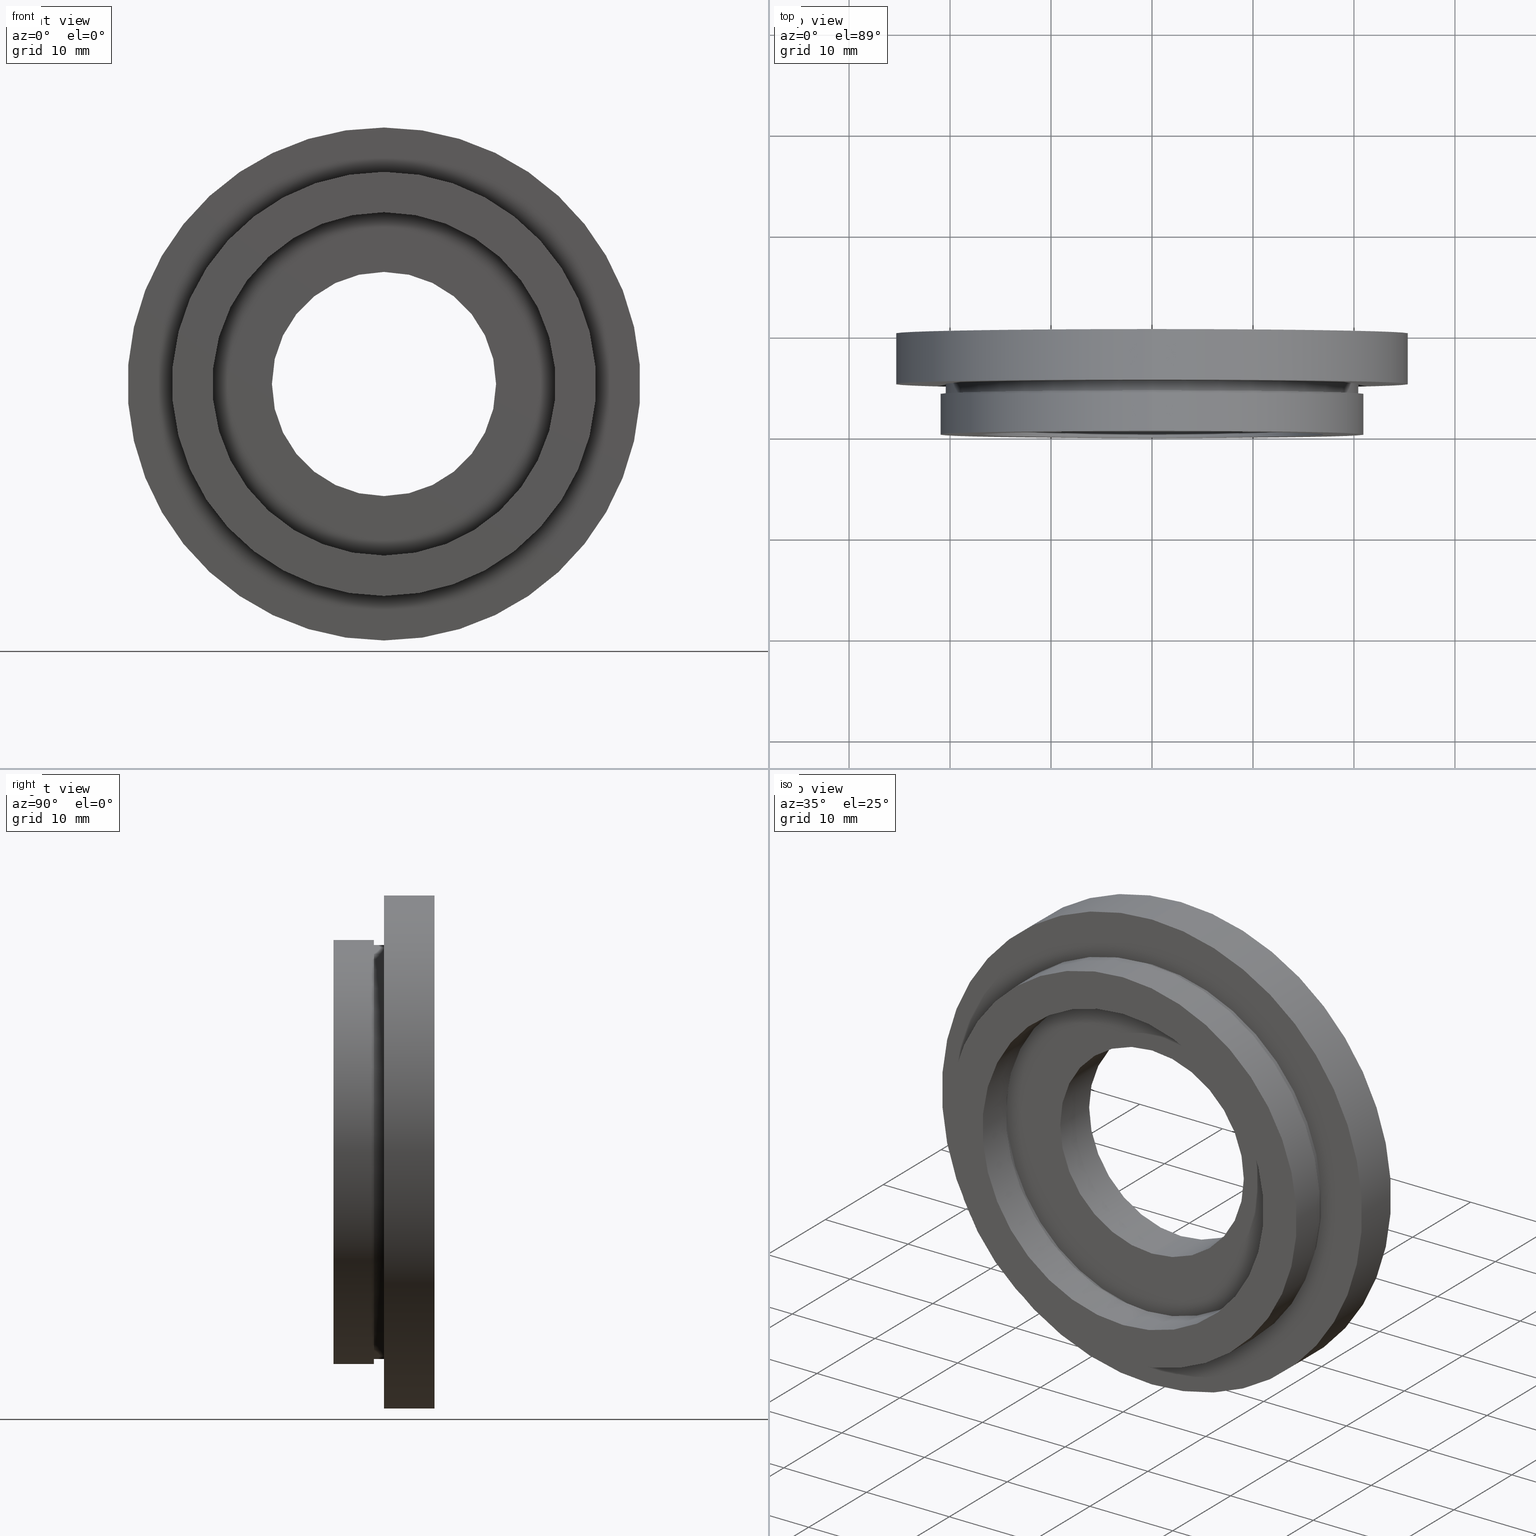
[diagram: canonical four-view strip — front | top / right | iso, engineering-drawing reading convention]
A machine part, canonical four-view strip (front | top / right | iso — engineering-drawing reading convention). The complete STEP part file that produces these views, byte-faithful:
ISO-10303-21;
HEADER;
FILE_DESCRIPTION (( 'STEP AP214' ),
    '1' );
FILE_NAME ('504036.STEP',
    '2019-09-29T09:33:43',
    ( 'user' ),
    ( '΢���й�' ),
    'SwSTEP 2.0',
    'SolidWorks 2016',
    '' );
FILE_SCHEMA (( 'AUTOMOTIVE_DESIGN' ));
ENDSEC;

DATA;
#1 = PRESENTATION_LAYER_ASSIGNMENT (  '', '', ( #592 ) ) ;
#2 = ORIENTED_EDGE ( 'NONE', *, *, #193, .T. ) ;
#3 = EDGE_CURVE ( 'NONE', #600, #511, #496, .T. ) ;
#4 = CARTESIAN_POINT ( 'NONE',  ( 2.510525938252074500E-015, 17.41929831819392000, -20.50000000000000000 ) ) ;
#5 =( NAMED_UNIT ( * ) PLANE_ANGLE_UNIT ( ) SI_UNIT ( $, .RADIAN. ) );
#6 = EDGE_LOOP ( 'NONE', ( #410, #269 ) ) ;
#7 = CIRCLE ( 'NONE', #510, 17.00000000000000400 ) ;
#8 = FILL_AREA_STYLE_COLOUR ( '', #111 ) ;
#9 = AXIS2_PLACEMENT_3D ( 'NONE', #54, #58, #43 ) ;
#10 = ORIENTED_EDGE ( 'NONE', *, *, #504, .T. ) ;
#11 =( LENGTH_UNIT ( ) NAMED_UNIT ( * ) SI_UNIT ( .MILLI., .METRE. ) );
#12 = ORIENTED_EDGE ( 'NONE', *, *, #276, .T. ) ;
#13 = CARTESIAN_POINT ( 'NONE',  ( 0.0000000000000000000, 0.0000000000000000000, 0.0000000000000000000 ) ) ;
#14 = SURFACE_STYLE_USAGE ( .BOTH. , #615 ) ;
#15 = FILL_AREA_STYLE_COLOUR ( '', #290 ) ;
#16 = AXIS2_PLACEMENT_3D ( 'NONE', #464, #528, #191 ) ;
#17 = LINE ( 'NONE', #277, #457 ) ;
#18 = DIRECTION ( 'NONE',  ( -0.0000000000000000000, 1.000000000000000000, -0.0000000000000000000 ) ) ;
#19 = DIRECTION ( 'NONE',  ( 0.0000000000000000000, 0.0000000000000000000, 1.000000000000000000 ) ) ;
#20 = CARTESIAN_POINT ( 'NONE',  ( 0.0000000000000000000, 17.41929831819392000, 0.0000000000000000000 ) ) ;
#21 = FILL_AREA_STYLE ('',( #8 ) ) ;
#22 =( LENGTH_UNIT ( ) NAMED_UNIT ( * ) SI_UNIT ( .MILLI., .METRE. ) );
#23 = ORIENTED_EDGE ( 'NONE', *, *, #3, .F. ) ;
#24 = EDGE_CURVE ( 'NONE', #129, #119, #472, .T. ) ;
#25 = FACE_OUTER_BOUND ( 'NONE', #324, .T. ) ;
#26 = VERTEX_POINT ( 'NONE', #201 ) ;
#27 = DIRECTION ( 'NONE',  ( -0.0000000000000000000, 1.000000000000000000, -0.0000000000000000000 ) ) ;
#28 = CYLINDRICAL_SURFACE ( 'NONE', #508, 17.60000000000000100 ) ;
#29 = CIRCLE ( 'NONE', #103, 21.00000000000000400 ) ;
#30 = EDGE_CURVE ( 'NONE', #26, #450, #603, .T. ) ;
#31 = SURFACE_SIDE_STYLE ('',( #51 ) ) ;
#32 = CARTESIAN_POINT ( 'NONE',  ( 0.0000000000000000000, 17.41929831819392000, 17.00000000000000400 ) ) ;
#33 = AXIS2_PLACEMENT_3D ( 'NONE', #13, #18, #159 ) ;
#34 = DIRECTION ( 'NONE',  ( 0.0000000000000000000, 0.0000000000000000000, 1.000000000000000000 ) ) ;
#35 = STYLED_ITEM ( 'NONE', ( #569 ), #383 ) ;
#36 = CARTESIAN_POINT ( 'NONE',  ( 2.155378366499341600E-015, 17.41929831819392000, -17.60000000000000100 ) ) ;
#37 = DIRECTION ( 'NONE',  ( 1.000000000000000000, 0.0000000000000000000, 0.0000000000000000000 ) ) ;
#38 =( GEOMETRIC_REPRESENTATION_CONTEXT ( 3 ) GLOBAL_UNCERTAINTY_ASSIGNED_CONTEXT ( ( #264 ) ) GLOBAL_UNIT_ASSIGNED_CONTEXT ( ( #245, #467, #67 ) ) REPRESENTATION_CONTEXT ( 'NONE', 'WORKASPACE' ) );
#39 = DIRECTION ( 'NONE',  ( 0.0000000000000000000, -0.0000000000000000000, -1.000000000000000000 ) ) ;
#40 = VERTEX_POINT ( 'NONE', #187 ) ;
#41 = DIRECTION ( 'NONE',  ( -0.0000000000000000000, 1.000000000000000000, -0.0000000000000000000 ) ) ;
#42 = ORIENTED_EDGE ( 'NONE', *, *, #196, .F. ) ;
#43 = DIRECTION ( 'NONE',  ( 0.0000000000000000000, 0.0000000000000000000, 1.000000000000000000 ) ) ;
#44 = FACE_OUTER_BOUND ( 'NONE', #55, .T. ) ;
#45 =( NAMED_UNIT ( * ) PLANE_ANGLE_UNIT ( ) SI_UNIT ( $, .RADIAN. ) );
#46 = ORIENTED_EDGE ( 'NONE', *, *, #525, .F. ) ;
#47 = AXIS2_PLACEMENT_3D ( 'NONE', #387, #526, #521 ) ;
#48 = PRODUCT_DEFINITION_CONTEXT ( 'detailed design', #79, 'design' ) ;
#49 = DIRECTION ( 'NONE',  ( -0.0000000000000000000, 1.000000000000000000, -0.0000000000000000000 ) ) ;
#50 = ADVANCED_FACE ( 'NONE', ( #519 ), #375, .F. ) ;
#51 = SURFACE_STYLE_FILL_AREA ( #487 ) ;
#52 = CIRCLE ( 'NONE', #576, 20.50000000000000000 ) ;
#53 = EDGE_CURVE ( 'NONE', #511, #310, #622, .T. ) ;
#54 = CARTESIAN_POINT ( 'NONE',  ( 0.0000000000000000000, 4.999999999999999100, 0.0000000000000000000 ) ) ;
#55 = EDGE_LOOP ( 'NONE', ( #168, #293 ) ) ;
#56 =( GEOMETRIC_REPRESENTATION_CONTEXT ( 3 ) GLOBAL_UNCERTAINTY_ASSIGNED_CONTEXT ( ( #92 ) ) GLOBAL_UNIT_ASSIGNED_CONTEXT ( ( #11, #460, #477 ) ) REPRESENTATION_CONTEXT ( 'NONE', 'WORKASPACE' ) );
#57 =( LENGTH_UNIT ( ) NAMED_UNIT ( * ) SI_UNIT ( .MILLI., .METRE. ) );
#58 = DIRECTION ( 'NONE',  ( -0.0000000000000000000, 1.000000000000000000, -0.0000000000000000000 ) ) ;
#59 = CYLINDRICAL_SURFACE ( 'NONE', #417, 17.60000000000000100 ) ;
#60 = SURFACE_STYLE_USAGE ( .BOTH. , #416 ) ;
#61 = PRODUCT_CONTEXT ( 'NONE', #122, 'mechanical' ) ;
#62 = PRESENTATION_LAYER_ASSIGNMENT (  '', '', ( #132 ) ) ;
#63 = DIRECTION ( 'NONE',  ( 0.0000000000000000000, 0.0000000000000000000, 1.000000000000000000 ) ) ;
#64 = DIRECTION ( 'NONE',  ( 0.0000000000000000000, -0.0000000000000000000, -1.000000000000000000 ) ) ;
#65 = COLOUR_RGB ( '',1.000000000000000000, 1.000000000000000000, 1.000000000000000000 ) ;
#66 = CIRCLE ( 'NONE', #204, 25.39999999999999900 ) ;
#67 =( NAMED_UNIT ( * ) SI_UNIT ( $, .STERADIAN. ) SOLID_ANGLE_UNIT ( ) );
#68 = DIRECTION ( 'NONE',  ( 0.0000000000000000000, 0.0000000000000000000, 1.000000000000000000 ) ) ;
#69 = EDGE_CURVE ( 'NONE', #294, #386, #66, .T. ) ;
#70 = CARTESIAN_POINT ( 'NONE',  ( 0.0000000000000000000, 4.000000000000000000, 0.0000000000000000000 ) ) ;
#71 = ORIENTED_EDGE ( 'NONE', *, *, #175, .T. ) ;
#72 = STYLED_ITEM ( 'NONE', ( #566 ), #358 ) ;
#73 = CARTESIAN_POINT ( 'NONE',  ( 0.0000000000000000000, 4.000000000000000000, 17.00000000000000400 ) ) ;
#74 = FACE_BOUND ( 'NONE', #124, .T. ) ;
#75 = VECTOR ( 'NONE', #484, 1000.000000000000000 ) ;
#76 = PLANE ( 'NONE',  #165 ) ;
#77 = CARTESIAN_POINT ( 'NONE',  ( 0.0000000000000000000, 17.41929831819392000, 0.0000000000000000000 ) ) ;
#78 = PRESENTATION_LAYER_ASSIGNMENT (  '', '', ( #268 ) ) ;
#79 = APPLICATION_CONTEXT ( 'automotive_design' ) ;
#80 = VECTOR ( 'NONE', #436, 1000.000000000000000 ) ;
#81 = DIRECTION ( 'NONE',  ( -0.0000000000000000000, 1.000000000000000000, -0.0000000000000000000 ) ) ;
#82 = ORIENTED_EDGE ( 'NONE', *, *, #53, .F. ) ;
#83 = DIRECTION ( 'NONE',  ( 0.0000000000000000000, 0.0000000000000000000, 1.000000000000000000 ) ) ;
#84 = FACE_BOUND ( 'NONE', #120, .T. ) ;
#85 = APPLICATION_PROTOCOL_DEFINITION ( 'draft international standard', 'automotive_design', 1998, #79 ) ;
#86 = EDGE_LOOP ( 'NONE', ( #365, #274 ) ) ;
#87 = AXIS2_PLACEMENT_3D ( 'NONE', #291, #316, #542 ) ;
#88 = VECTOR ( 'NONE', #198, 1000.000000000000000 ) ;
#89 = CARTESIAN_POINT ( 'NONE',  ( 0.0000000000000000000, 17.41929831819392000, 0.0000000000000000000 ) ) ;
#90 =( GEOMETRIC_REPRESENTATION_CONTEXT ( 3 ) GLOBAL_UNCERTAINTY_ASSIGNED_CONTEXT ( ( #300 ) ) GLOBAL_UNIT_ASSIGNED_CONTEXT ( ( #205, #107, #105 ) ) REPRESENTATION_CONTEXT ( 'NONE', 'WORKASPACE' ) );
#91 = CARTESIAN_POINT ( 'NONE',  ( 0.0000000000000000000, 0.0000000000000000000, 21.00000000000000400 ) ) ;
#92 = UNCERTAINTY_MEASURE_WITH_UNIT (LENGTH_MEASURE( 1.000000000000000100E-005 ), #11, 'distance_accuracy_value', 'NONE');
#93 = DIRECTION ( 'NONE',  ( -0.0000000000000000000, 1.000000000000000000, -0.0000000000000000000 ) ) ;
#94 = EDGE_CURVE ( 'NONE', #386, #469, #17, .T. ) ;
#95 = CARTESIAN_POINT ( 'NONE',  ( 0.0000000000000000000, 17.41929831819392000, 21.00000000000000400 ) ) ;
#96 = CARTESIAN_POINT ( 'NONE',  ( 0.0000000000000000000, 17.41929831819392000, 20.50000000000000000 ) ) ;
#97 = CIRCLE ( 'NONE', #33, 17.00000000000000400 ) ;
#98 = VERTEX_POINT ( 'NONE', #273 ) ;
#99 = FACE_BOUND ( 'NONE', #311, .T. ) ;
#100 = CARTESIAN_POINT ( 'NONE',  ( 0.0000000000000000000, 17.41929831819392000, 0.0000000000000000000 ) ) ;
#101 = PRODUCT ( '504036', '504036', '', ( #61 ) ) ;
#102 = CARTESIAN_POINT ( 'NONE',  ( 0.0000000000000000000, 17.41929831819392000, 0.0000000000000000000 ) ) ;
#103 = AXIS2_PLACEMENT_3D ( 'NONE', #494, #572, #567 ) ;
#104 = SURFACE_SIDE_STYLE ('',( #314 ) ) ;
#105 =( NAMED_UNIT ( * ) SI_UNIT ( $, .STERADIAN. ) SOLID_ANGLE_UNIT ( ) );
#106 = DIRECTION ( 'NONE',  ( 0.0000000000000000000, 0.0000000000000000000, 1.000000000000000000 ) ) ;
#107 =( NAMED_UNIT ( * ) PLANE_ANGLE_UNIT ( ) SI_UNIT ( $, .RADIAN. ) );
#108 = DIRECTION ( 'NONE',  ( 0.0000000000000000000, -1.000000000000000000, 0.0000000000000000000 ) ) ;
#109 = AXIS2_PLACEMENT_3D ( 'NONE', #581, #93, #377 ) ;
#110 = VERTEX_POINT ( 'NONE', #313 ) ;
#111 = COLOUR_RGB ( '',1.000000000000000000, 1.000000000000000000, 1.000000000000000000 ) ;
#112 = ORIENTED_EDGE ( 'NONE', *, *, #350, .F. ) ;
#113 = UNCERTAINTY_MEASURE_WITH_UNIT (LENGTH_MEASURE( 1.000000000000000100E-005 ), #480, 'distance_accuracy_value', 'NONE');
#114 = FACE_OUTER_BOUND ( 'NONE', #614, .T. ) ;
#115 = MECHANICAL_DESIGN_GEOMETRIC_PRESENTATION_REPRESENTATION (  '', ( #592 ), #523 ) ;
#116 = ADVANCED_BREP_SHAPE_REPRESENTATION ( '504036', ( #383, #394 ), #90 ) ;
#117 = ORIENTED_EDGE ( 'NONE', *, *, #282, .F. ) ;
#118 = ADVANCED_FACE ( 'NONE', ( #312 ), #28, .F. ) ;
#119 = VERTEX_POINT ( 'NONE', #326 ) ;
#120 = EDGE_LOOP ( 'NONE', ( #378, #166 ) ) ;
#121 = VERTEX_POINT ( 'NONE', #517 ) ;
#122 = APPLICATION_CONTEXT ( 'automotive_design' ) ;
#123 = FILL_AREA_STYLE_COLOUR ( '', #65 ) ;
#124 = EDGE_LOOP ( 'NONE', ( #613, #82 ) ) ;
#125 = ORIENTED_EDGE ( 'NONE', *, *, #24, .F. ) ;
#126 = DIRECTION ( 'NONE',  ( -0.0000000000000000000, 1.000000000000000000, -0.0000000000000000000 ) ) ;
#127 = ORIENTED_EDGE ( 'NONE', *, *, #423, .F. ) ;
#128 = ORIENTED_EDGE ( 'NONE', *, *, #223, .T. ) ;
#129 = VERTEX_POINT ( 'NONE', #329 ) ;
#130 = CARTESIAN_POINT ( 'NONE',  ( 20.50000000000000000, 5.000000000000000000, 0.0000000000000000000 ) ) ;
#131 = CIRCLE ( 'NONE', #442, 25.39999999999999900 ) ;
#132 = STYLED_ITEM ( 'NONE', ( #560 ), #583 ) ;
#133 = VERTEX_POINT ( 'NONE', #335 ) ;
#134 = DIRECTION ( 'NONE',  ( -0.0000000000000000000, 1.000000000000000000, -0.0000000000000000000 ) ) ;
#135 = ORIENTED_EDGE ( 'NONE', *, *, #309, .T. ) ;
#136 = DIRECTION ( 'NONE',  ( -0.0000000000000000000, 1.000000000000000000, 0.0000000000000000000 ) ) ;
#137 =( GEOMETRIC_REPRESENTATION_CONTEXT ( 3 ) GLOBAL_UNCERTAINTY_ASSIGNED_CONTEXT ( ( #113 ) ) GLOBAL_UNIT_ASSIGNED_CONTEXT ( ( #480, #488, #177 ) ) REPRESENTATION_CONTEXT ( 'NONE', 'WORKASPACE' ) );
#138 = VERTEX_POINT ( 'NONE', #522 ) ;
#139 = DIRECTION ( 'NONE',  ( -0.0000000000000000000, 1.000000000000000000, -0.0000000000000000000 ) ) ;
#140 = DIRECTION ( 'NONE',  ( -0.0000000000000000000, 1.000000000000000000, -0.0000000000000000000 ) ) ;
#141 = DIRECTION ( 'NONE',  ( 0.0000000000000000000, 0.0000000000000000000, 1.000000000000000000 ) ) ;
#142 = ORIENTED_EDGE ( 'NONE', *, *, #525, .T. ) ;
#143 = PLANE ( 'NONE',  #616 ) ;
#144 = COLOUR_RGB ( '',1.000000000000000000, 1.000000000000000000, 1.000000000000000000 ) ;
#145 = EDGE_CURVE ( 'NONE', #133, #129, #588, .T. ) ;
#146 = ORIENTED_EDGE ( 'NONE', *, *, #385, .T. ) ;
#147 = CYLINDRICAL_SURFACE ( 'NONE', #529, 21.00000000000000400 ) ;
#148 =( NAMED_UNIT ( * ) SI_UNIT ( $, .STERADIAN. ) SOLID_ANGLE_UNIT ( ) );
#149 = FILL_AREA_STYLE ('',( #570 ) ) ;
#150 = CARTESIAN_POINT ( 'NONE',  ( 0.0000000000000000000, 4.000000000000000000, 0.0000000000000000000 ) ) ;
#151 = MECHANICAL_DESIGN_GEOMETRIC_PRESENTATION_REPRESENTATION (  '', ( #35 ), #137 ) ;
#152 = DIRECTION ( 'NONE',  ( 0.0000000000000000000, 0.0000000000000000000, 1.000000000000000000 ) ) ;
#153 = CIRCLE ( 'NONE', #9, 11.10000000000000100 ) ;
#154 = CARTESIAN_POINT ( 'NONE',  ( 21.00000000000000400, 4.000000000000000000, 0.0000000000000000000 ) ) ;
#155 = ORIENTED_EDGE ( 'NONE', *, *, #212, .T. ) ;
#156 = CARTESIAN_POINT ( 'NONE',  ( 0.0000000000000000000, 0.0000000000000000000, 0.0000000000000000000 ) ) ;
#157 = DIRECTION ( 'NONE',  ( 0.0000000000000000000, 0.0000000000000000000, 1.000000000000000000 ) ) ;
#158 = FILL_AREA_STYLE_COLOUR ( '', #340 ) ;
#159 = DIRECTION ( 'NONE',  ( 0.0000000000000000000, 0.0000000000000000000, 1.000000000000000000 ) ) ;
#160 = AXIS2_PLACEMENT_3D ( 'NONE', #289, #108, #64 ) ;
#161 = ORIENTED_EDGE ( 'NONE', *, *, #532, .F. ) ;
#162 = DIRECTION ( 'NONE',  ( -0.0000000000000000000, 1.000000000000000000, 0.0000000000000000000 ) ) ;
#163 = PRODUCT_DEFINITION_SHAPE ( 'NONE', 'NONE',  #577 ) ;
#164 = DIRECTION ( 'NONE',  ( 0.0000000000000000000, 0.0000000000000000000, 1.000000000000000000 ) ) ;
#165 = AXIS2_PLACEMENT_3D ( 'NONE', #202, #162, #34 ) ;
#166 = ORIENTED_EDGE ( 'NONE', *, *, #468, .T. ) ;
#167 = AXIS2_PLACEMENT_3D ( 'NONE', #77, #49, #83 ) ;
#168 = ORIENTED_EDGE ( 'NONE', *, *, #282, .T. ) ;
#169 = CIRCLE ( 'NONE', #372, 21.00000000000000400 ) ;
#170 = ORIENTED_EDGE ( 'NONE', *, *, #434, .F. ) ;
#171 = CARTESIAN_POINT ( 'NONE',  ( 0.0000000000000000000, 5.000000000000000900, 25.39999999999999900 ) ) ;
#172 = EDGE_CURVE ( 'NONE', #26, #237, #194, .T. ) ;
#173 = SURFACE_STYLE_FILL_AREA ( #610 ) ;
#174 = CARTESIAN_POINT ( 'NONE',  ( 0.0000000000000000000, 0.0000000000000000000, 0.0000000000000000000 ) ) ;
#175 = EDGE_CURVE ( 'NONE', #121, #133, #389, .T. ) ;
#176 = PRESENTATION_LAYER_ASSIGNMENT (  '', '', ( #391 ) ) ;
#177 =( NAMED_UNIT ( * ) SI_UNIT ( $, .STERADIAN. ) SOLID_ANGLE_UNIT ( ) );
#178 = AXIS2_PLACEMENT_3D ( 'NONE', #154, #338, #388 ) ;
#179 = ADVANCED_FACE ( 'NONE', ( #74, #438 ), #451, .F. ) ;
#180 = PRESENTATION_STYLE_ASSIGNMENT (( #285 ) ) ;
#181 = CARTESIAN_POINT ( 'NONE',  ( 0.0000000000000000000, 10.00000000000000000, 0.0000000000000000000 ) ) ;
#182 = COLOUR_RGB ( '',1.000000000000000000, 1.000000000000000000, 1.000000000000000000 ) ;
#183 = CARTESIAN_POINT ( 'NONE',  ( 0.0000000000000000000, 10.00000000000000000, 25.39999999999999900 ) ) ;
#184 = UNCERTAINTY_MEASURE_WITH_UNIT (LENGTH_MEASURE( 1.000000000000000100E-005 ), #364, 'distance_accuracy_value', 'NONE');
#185 = FACE_OUTER_BOUND ( 'NONE', #608, .T. ) ;
#186 = CIRCLE ( 'NONE', #439, 20.50000000000000000 ) ;
#187 = CARTESIAN_POINT ( 'NONE',  ( 2.510525938252074500E-015, 5.000000000000000900, -20.50000000000000000 ) ) ;
#188 = PRESENTATION_LAYER_ASSIGNMENT (  '', '', ( #286 ) ) ;
#189 = CARTESIAN_POINT ( 'NONE',  ( 0.0000000000000000000, 0.0000000000000000000, 0.0000000000000000000 ) ) ;
#190 = EDGE_LOOP ( 'NONE', ( #135, #71 ) ) ;
#191 = DIRECTION ( 'NONE',  ( 0.0000000000000000000, 0.0000000000000000000, 1.000000000000000000 ) ) ;
#192 = DIRECTION ( 'NONE',  ( -0.0000000000000000000, 1.000000000000000000, -0.0000000000000000000 ) ) ;
#193 = EDGE_CURVE ( 'NONE', #600, #476, #424, .T. ) ;
#194 = LINE ( 'NONE', #533, #573 ) ;
#195 = FACE_OUTER_BOUND ( 'NONE', #462, .T. ) ;
#196 = EDGE_CURVE ( 'NONE', #121, #119, #296, .T. ) ;
#197 = DIRECTION ( 'NONE',  ( 0.0000000000000000000, 0.0000000000000000000, 1.000000000000000000 ) ) ;
#198 = DIRECTION ( 'NONE',  ( -0.0000000000000000000, 1.000000000000000000, -0.0000000000000000000 ) ) ;
#199 = DIRECTION ( 'NONE',  ( -0.0000000000000000000, 1.000000000000000000, -0.0000000000000000000 ) ) ;
#200 = ORIENTED_EDGE ( 'NONE', *, *, #94, .F. ) ;
#201 = CARTESIAN_POINT ( 'NONE',  ( 2.571758278209442100E-015, 0.0000000000000000000, -21.00000000000000400 ) ) ;
#202 = CARTESIAN_POINT ( 'NONE',  ( 17.60000000000000100, 4.999999999999999100, 0.0000000000000000000 ) ) ;
#203 = EDGE_LOOP ( 'NONE', ( #449, #253, #611, #541 ) ) ;
#204 = AXIS2_PLACEMENT_3D ( 'NONE', #344, #341, #318 ) ;
#205 =( LENGTH_UNIT ( ) NAMED_UNIT ( * ) SI_UNIT ( .MILLI., .METRE. ) );
#206 = AXIS2_PLACEMENT_3D ( 'NONE', #393, #81, #598 ) ;
#207 = ORIENTED_EDGE ( 'NONE', *, *, #429, .F. ) ;
#208 = CARTESIAN_POINT ( 'NONE',  ( 0.0000000000000000000, 17.41929831819392000, 0.0000000000000000000 ) ) ;
#209 = ORIENTED_EDGE ( 'NONE', *, *, #561, .T. ) ;
#210 = FACE_OUTER_BOUND ( 'NONE', #267, .T. ) ;
#211 = ORIENTED_EDGE ( 'NONE', *, *, #490, .F. ) ;
#212 = EDGE_CURVE ( 'NONE', #138, #40, #379, .T. ) ;
#213 = EDGE_LOOP ( 'NONE', ( #215, #602, #518, #483 ) ) ;
#214 = FACE_OUTER_BOUND ( 'NONE', #367, .T. ) ;
#215 = ORIENTED_EDGE ( 'NONE', *, *, #175, .F. ) ;
#216 = SURFACE_STYLE_FILL_AREA ( #295 ) ;
#217 = FACE_OUTER_BOUND ( 'NONE', #232, .T. ) ;
#218 = UNCERTAINTY_MEASURE_WITH_UNIT (LENGTH_MEASURE( 1.000000000000000100E-005 ), #621, 'distance_accuracy_value', 'NONE');
#219 = CARTESIAN_POINT ( 'NONE',  ( 2.081899558550500700E-015, 17.41929831819392000, -17.00000000000000400 ) ) ;
#220 = ORIENTED_EDGE ( 'NONE', *, *, #212, .F. ) ;
#221 = DIRECTION ( 'NONE',  ( -0.0000000000000000000, 1.000000000000000000, -0.0000000000000000000 ) ) ;
#222 = ORIENTED_EDGE ( 'NONE', *, *, #30, .T. ) ;
#223 = EDGE_CURVE ( 'NONE', #420, #138, #186, .T. ) ;
#224 = MECHANICAL_DESIGN_GEOMETRIC_PRESENTATION_REPRESENTATION (  '', ( #268 ), #403 ) ;
#225 = PRODUCT_DEFINITION_FORMATION_WITH_SPECIFIED_SOURCE ( '�κ�', '', #101, .NOT_KNOWN. ) ;
#226 = DIRECTION ( 'NONE',  ( 0.0000000000000000000, 0.0000000000000000000, 1.000000000000000000 ) ) ;
#227 = ADVANCED_FACE ( 'NONE', ( #278 ), #543, .T. ) ;
#228 = DIRECTION ( 'NONE',  ( -0.0000000000000000000, 1.000000000000000000, -0.0000000000000000000 ) ) ;
#229 = ORIENTED_EDGE ( 'NONE', *, *, #504, .F. ) ;
#230 = EDGE_LOOP ( 'NONE', ( #259, #222, #10, #207 ) ) ;
#231 = FACE_BOUND ( 'NONE', #190, .T. ) ;
#232 = EDGE_LOOP ( 'NONE', ( #161, #412 ) ) ;
#233 = CARTESIAN_POINT ( 'NONE',  ( 1.359357947053562400E-015, 17.41929831819392000, -11.10000000000000100 ) ) ;
#234 = ADVANCED_FACE ( 'NONE', ( #559, #44 ), #422, .F. ) ;
#235 = CARTESIAN_POINT ( 'NONE',  ( 0.0000000000000000000, 17.41929831819392000, 0.0000000000000000000 ) ) ;
#236 = MECHANICAL_DESIGN_GEOMETRIC_PRESENTATION_REPRESENTATION (  '', ( #258 ), #272 ) ;
#237 = VERTEX_POINT ( 'NONE', #321 ) ;
#238 = ORIENTED_EDGE ( 'NONE', *, *, #594, .F. ) ;
#239 = DIRECTION ( 'NONE',  ( -0.0000000000000000000, 1.000000000000000000, -0.0000000000000000000 ) ) ;
#240 = ORIENTED_EDGE ( 'NONE', *, *, #309, .F. ) ;
#241 = CYLINDRICAL_SURFACE ( 'NONE', #206, 17.00000000000000400 ) ;
#242 = CIRCLE ( 'NONE', #531, 20.50000000000000000 ) ;
#243 = UNCERTAINTY_MEASURE_WITH_UNIT (LENGTH_MEASURE( 1.000000000000000100E-005 ), #22, 'distance_accuracy_value', 'NONE');
#244 = VECTOR ( 'NONE', #298, 1000.000000000000000 ) ;
#245 =( LENGTH_UNIT ( ) NAMED_UNIT ( * ) SI_UNIT ( .MILLI., .METRE. ) );
#246 = CIRCLE ( 'NONE', #47, 25.39999999999999900 ) ;
#247 = CARTESIAN_POINT ( 'NONE',  ( 0.0000000000000000000, 4.999999999999999100, 0.0000000000000000000 ) ) ;
#248 = FACE_OUTER_BOUND ( 'NONE', #230, .T. ) ;
#249 = AXIS2_PLACEMENT_3D ( 'NONE', #20, #27, #68 ) ;
#250 = ORIENTED_EDGE ( 'NONE', *, *, #345, .T. ) ;
#251 = MECHANICAL_DESIGN_GEOMETRIC_PRESENTATION_REPRESENTATION (  '', ( #132 ), #38 ) ;
#252 = DIRECTION ( 'NONE',  ( 0.0000000000000000000, 0.0000000000000000000, 1.000000000000000000 ) ) ;
#253 = ORIENTED_EDGE ( 'NONE', *, *, #69, .T. ) ;
#254 = FACE_OUTER_BOUND ( 'NONE', #353, .T. ) ;
#255 = VECTOR ( 'NONE', #41, 1000.000000000000000 ) ;
#256 = CIRCLE ( 'NONE', #87, 17.60000000000000100 ) ;
#257 = FILL_AREA_STYLE ('',( #15 ) ) ;
#258 = STYLED_ITEM ( 'NONE', ( #180 ), #50 ) ;
#259 = ORIENTED_EDGE ( 'NONE', *, *, #172, .F. ) ;
#260 = LINE ( 'NONE', #96, #406 ) ;
#261 =( GEOMETRIC_REPRESENTATION_CONTEXT ( 3 ) GLOBAL_UNCERTAINTY_ASSIGNED_CONTEXT ( ( #357 ) ) GLOBAL_UNIT_ASSIGNED_CONTEXT ( ( #57, #5, #376 ) ) REPRESENTATION_CONTEXT ( 'NONE', 'WORKASPACE' ) );
#262 = ORIENTED_EDGE ( 'NONE', *, *, #3, .T. ) ;
#263 =( NAMED_UNIT ( * ) SI_UNIT ( $, .STERADIAN. ) SOLID_ANGLE_UNIT ( ) );
#264 = UNCERTAINTY_MEASURE_WITH_UNIT (LENGTH_MEASURE( 1.000000000000000100E-005 ), #245, 'distance_accuracy_value', 'NONE');
#265 = EDGE_LOOP ( 'NONE', ( #544, #425, #46, #200 ) ) ;
#266 = DIRECTION ( 'NONE',  ( -0.0000000000000000000, 1.000000000000000000, -0.0000000000000000000 ) ) ;
#267 = EDGE_LOOP ( 'NONE', ( #211, #342 ) ) ;
#268 = STYLED_ITEM ( 'NONE', ( #605 ), #426 ) ;
#269 = ORIENTED_EDGE ( 'NONE', *, *, #287, .F. ) ;
#270 =( NAMED_UNIT ( * ) PLANE_ANGLE_UNIT ( ) SI_UNIT ( $, .RADIAN. ) );
#271 = FACE_OUTER_BOUND ( 'NONE', #395, .T. ) ;
#272 =( GEOMETRIC_REPRESENTATION_CONTEXT ( 3 ) GLOBAL_UNCERTAINTY_ASSIGNED_CONTEXT ( ( #445 ) ) GLOBAL_UNIT_ASSIGNED_CONTEXT ( ( #281, #270, #263 ) ) REPRESENTATION_CONTEXT ( 'NONE', 'WORKASPACE' ) );
#273 = CARTESIAN_POINT ( 'NONE',  ( 3.110602869834276900E-015, 10.00000000000000000, -25.39999999999999900 ) ) ;
#274 = ORIENTED_EDGE ( 'NONE', *, *, #554, .T. ) ;
#275 = ORIENTED_EDGE ( 'NONE', *, *, #618, .F. ) ;
#276 = EDGE_CURVE ( 'NONE', #420, #401, #260, .T. ) ;
#277 = CARTESIAN_POINT ( 'NONE',  ( 0.0000000000000000000, 17.41929831819392000, 25.39999999999999900 ) ) ;
#278 = FACE_OUTER_BOUND ( 'NONE', #265, .T. ) ;
#279 = DIRECTION ( 'NONE',  ( 0.0000000000000000000, 0.0000000000000000000, 1.000000000000000000 ) ) ;
#280 = ORIENTED_EDGE ( 'NONE', *, *, #276, .F. ) ;
#281 =( LENGTH_UNIT ( ) NAMED_UNIT ( * ) SI_UNIT ( .MILLI., .METRE. ) );
#282 = EDGE_CURVE ( 'NONE', #369, #237, #169, .T. ) ;
#283 =( NAMED_UNIT ( * ) PLANE_ANGLE_UNIT ( ) SI_UNIT ( $, .RADIAN. ) );
#284 = ORIENTED_EDGE ( 'NONE', *, *, #350, .T. ) ;
#285 = SURFACE_STYLE_USAGE ( .BOTH. , #292 ) ;
#286 = STYLED_ITEM ( 'NONE', ( #288 ), #116 ) ;
#287 = EDGE_CURVE ( 'NONE', #138, #420, #52, .T. ) ;
#288 = PRESENTATION_STYLE_ASSIGNMENT (( #482 ) ) ;
#289 = CARTESIAN_POINT ( 'NONE',  ( 11.10000000000000100, 10.00000000000000000, 0.0000000000000000000 ) ) ;
#290 = COLOUR_RGB ( '',1.000000000000000000, 1.000000000000000000, 1.000000000000000000 ) ;
#291 = CARTESIAN_POINT ( 'NONE',  ( 0.0000000000000000000, 4.000000000000000000, 0.0000000000000000000 ) ) ;
#292 = SURFACE_SIDE_STYLE ('',( #216 ) ) ;
#293 = ORIENTED_EDGE ( 'NONE', *, *, #429, .T. ) ;
#294 = VERTEX_POINT ( 'NONE', #489 ) ;
#295 = FILL_AREA_STYLE ('',( #302 ) ) ;
#296 = LINE ( 'NONE', #233, #244 ) ;
#297 = PLANE ( 'NONE',  #160 ) ;
#298 = DIRECTION ( 'NONE',  ( -0.0000000000000000000, 1.000000000000000000, -0.0000000000000000000 ) ) ;
#299 = DIRECTION ( 'NONE',  ( 0.0000000000000000000, 0.0000000000000000000, 1.000000000000000000 ) ) ;
#300 = UNCERTAINTY_MEASURE_WITH_UNIT (LENGTH_MEASURE( 1.000000000000000100E-005 ), #205, 'distance_accuracy_value', 'NONE');
#301 = CARTESIAN_POINT ( 'NONE',  ( 0.0000000000000000000, 10.00000000000000000, 0.0000000000000000000 ) ) ;
#302 = FILL_AREA_STYLE_COLOUR ( '', #330 ) ;
#303 = LINE ( 'NONE', #36, #549 ) ;
#304 = SURFACE_STYLE_FILL_AREA ( #257 ) ;
#305 = ORIENTED_EDGE ( 'NONE', *, *, #561, .F. ) ;
#306 = DIRECTION ( 'NONE',  ( 0.0000000000000000000, 0.0000000000000000000, 1.000000000000000000 ) ) ;
#307 = ADVANCED_FACE ( 'NONE', ( #210, #84 ), #143, .F. ) ;
#308 = AXIS2_PLACEMENT_3D ( 'NONE', #301, #325, #320 ) ;
#309 = EDGE_CURVE ( 'NONE', #133, #121, #153, .T. ) ;
#310 = VERTEX_POINT ( 'NONE', #73 ) ;
#311 = EDGE_LOOP ( 'NONE', ( #454, #2 ) ) ;
#312 = FACE_OUTER_BOUND ( 'NONE', #491, .T. ) ;
#313 = CARTESIAN_POINT ( 'NONE',  ( 2.155378366499341600E-015, 4.000000000000000000, -17.60000000000000100 ) ) ;
#314 = SURFACE_STYLE_FILL_AREA ( #149 ) ;
#315 = DIRECTION ( 'NONE',  ( -0.0000000000000000000, 1.000000000000000000, -0.0000000000000000000 ) ) ;
#316 = DIRECTION ( 'NONE',  ( -0.0000000000000000000, 1.000000000000000000, -0.0000000000000000000 ) ) ;
#317 = CARTESIAN_POINT ( 'NONE',  ( 0.0000000000000000000, 5.000000000000000900, 0.0000000000000000000 ) ) ;
#318 = DIRECTION ( 'NONE',  ( 0.0000000000000000000, 0.0000000000000000000, 1.000000000000000000 ) ) ;
#319 = VECTOR ( 'NONE', #430, 1000.000000000000000 ) ;
#320 = DIRECTION ( 'NONE',  ( 0.0000000000000000000, 0.0000000000000000000, 1.000000000000000000 ) ) ;
#321 = CARTESIAN_POINT ( 'NONE',  ( 2.571758278209442100E-015, 4.000000000000000000, -21.00000000000000400 ) ) ;
#322 = DIRECTION ( 'NONE',  ( 0.0000000000000000000, 0.0000000000000000000, 1.000000000000000000 ) ) ;
#323 = CARTESIAN_POINT ( 'NONE',  ( 0.0000000000000000000, 4.999999999999999100, 17.60000000000000100 ) ) ;
#324 = EDGE_LOOP ( 'NONE', ( #142, #456 ) ) ;
#325 = DIRECTION ( 'NONE',  ( -0.0000000000000000000, 1.000000000000000000, -0.0000000000000000000 ) ) ;
#326 = CARTESIAN_POINT ( 'NONE',  ( 1.359357947053562400E-015, 10.00000000000000000, -11.10000000000000100 ) ) ;
#327 = CLOSED_SHELL ( 'NONE', ( #596, #118, #583, #227, #328, #426, #470, #358, #234, #354, #307, #452, #604, #370, #620, #555, #179, #50 ) ) ;
#328 = ADVANCED_FACE ( 'NONE', ( #448 ), #479, .T. ) ;
#329 = CARTESIAN_POINT ( 'NONE',  ( 0.0000000000000000000, 10.00000000000000000, 11.10000000000000100 ) ) ;
#330 = COLOUR_RGB ( '',1.000000000000000000, 1.000000000000000000, 1.000000000000000000 ) ;
#331 = CARTESIAN_POINT ( 'NONE',  ( 0.0000000000000000000, 17.41929831819392000, 0.0000000000000000000 ) ) ;
#332 = LINE ( 'NONE', #95, #88 ) ;
#333 = AXIS2_PLACEMENT_3D ( 'NONE', #100, #349, #539 ) ;
#334 = FILL_AREA_STYLE ('',( #563 ) ) ;
#335 = CARTESIAN_POINT ( 'NONE',  ( 0.0000000000000000000, 4.999999999999999100, 11.10000000000000100 ) ) ;
#336 = CARTESIAN_POINT ( 'NONE',  ( 0.0000000000000000000, 17.41929831819392000, 0.0000000000000000000 ) ) ;
#337 = AXIS2_PLACEMENT_3D ( 'NONE', #404, #458, #547 ) ;
#338 = DIRECTION ( 'NONE',  ( 0.0000000000000000000, -1.000000000000000000, 0.0000000000000000000 ) ) ;
#339 = DIRECTION ( 'NONE',  ( 0.0000000000000000000, 0.0000000000000000000, 1.000000000000000000 ) ) ;
#340 = COLOUR_RGB ( '',1.000000000000000000, 1.000000000000000000, 1.000000000000000000 ) ;
#341 = DIRECTION ( 'NONE',  ( -0.0000000000000000000, 1.000000000000000000, -0.0000000000000000000 ) ) ;
#342 = ORIENTED_EDGE ( 'NONE', *, *, #69, .F. ) ;
#343 = CARTESIAN_POINT ( 'NONE',  ( 2.081899558550500700E-015, 0.0000000000000000000, -17.00000000000000400 ) ) ;
#344 = CARTESIAN_POINT ( 'NONE',  ( 0.0000000000000000000, 5.000000000000000900, 0.0000000000000000000 ) ) ;
#345 = EDGE_CURVE ( 'NONE', #110, #623, #303, .T. ) ;
#346 = SURFACE_STYLE_FILL_AREA ( #334 ) ;
#347 = ORIENTED_EDGE ( 'NONE', *, *, #193, .F. ) ;
#348 = CIRCLE ( 'NONE', #373, 17.60000000000000100 ) ;
#349 = DIRECTION ( 'NONE',  ( -0.0000000000000000000, 1.000000000000000000, -0.0000000000000000000 ) ) ;
#350 = EDGE_CURVE ( 'NONE', #476, #310, #579, .T. ) ;
#351 = EDGE_LOOP ( 'NONE', ( #125, #352 ) ) ;
#352 = ORIENTED_EDGE ( 'NONE', *, *, #599, .F. ) ;
#353 = EDGE_LOOP ( 'NONE', ( #347, #262, #509, #112 ) ) ;
#354 = ADVANCED_FACE ( 'NONE', ( #271 ), #535, .T. ) ;
#355 = DIRECTION ( 'NONE',  ( -0.0000000000000000000, 1.000000000000000000, -0.0000000000000000000 ) ) ;
#356 = AXIS2_PLACEMENT_3D ( 'NONE', #514, #366, #362 ) ;
#357 = UNCERTAINTY_MEASURE_WITH_UNIT (LENGTH_MEASURE( 1.000000000000000100E-005 ), #57, 'distance_accuracy_value', 'NONE');
#358 = ADVANCED_FACE ( 'NONE', ( #248 ), #612, .T. ) ;
#359 = SURFACE_STYLE_FILL_AREA ( #578 ) ;
#360 = SURFACE_SIDE_STYLE ('',( #346 ) ) ;
#361 = VECTOR ( 'NONE', #221, 1000.000000000000000 ) ;
#362 = DIRECTION ( 'NONE',  ( 0.0000000000000000000, 0.0000000000000000000, 1.000000000000000000 ) ) ;
#363 = AXIS2_PLACEMENT_3D ( 'NONE', #440, #400, #397 ) ;
#364 =( LENGTH_UNIT ( ) NAMED_UNIT ( * ) SI_UNIT ( .MILLI., .METRE. ) );
#365 = ORIENTED_EDGE ( 'NONE', *, *, #434, .T. ) ;
#366 = DIRECTION ( 'NONE',  ( -0.0000000000000000000, 1.000000000000000000, -0.0000000000000000000 ) ) ;
#367 = EDGE_LOOP ( 'NONE', ( #127, #428 ) ) ;
#368 = DIRECTION ( 'NONE',  ( 0.0000000000000000000, 0.0000000000000000000, 1.000000000000000000 ) ) ;
#369 = VERTEX_POINT ( 'NONE', #587 ) ;
#370 = ADVANCED_FACE ( 'NONE', ( #185 ), #414, .F. ) ;
#371 = DIRECTION ( 'NONE',  ( 0.0000000000000000000, 0.0000000000000000000, 1.000000000000000000 ) ) ;
#372 = AXIS2_PLACEMENT_3D ( 'NONE', #498, #492, #152 ) ;
#373 = AXIS2_PLACEMENT_3D ( 'NONE', #247, #315, #306 ) ;
#374 = DIRECTION ( 'NONE',  ( -0.0000000000000000000, 1.000000000000000000, -0.0000000000000000000 ) ) ;
#375 = CYLINDRICAL_SURFACE ( 'NONE', #390, 17.00000000000000400 ) ;
#376 =( NAMED_UNIT ( * ) SI_UNIT ( $, .STERADIAN. ) SOLID_ANGLE_UNIT ( ) );
#377 = DIRECTION ( 'NONE',  ( 0.0000000000000000000, 0.0000000000000000000, 1.000000000000000000 ) ) ;
#378 = ORIENTED_EDGE ( 'NONE', *, *, #594, .T. ) ;
#379 = LINE ( 'NONE', #4, #319 ) ;
#380 = CARTESIAN_POINT ( 'NONE',  ( 17.00000000000000400, 0.0000000000000000000, 0.0000000000000000000 ) ) ;
#381 = VECTOR ( 'NONE', #558, 1000.000000000000000 ) ;
#382 = CARTESIAN_POINT ( 'NONE',  ( 0.0000000000000000000, 5.000000000000000900, 0.0000000000000000000 ) ) ;
#383 = MANIFOLD_SOLID_BREP ( '��ת1', #327 ) ;
#384 = DIRECTION ( 'NONE',  ( -0.0000000000000000000, 1.000000000000000000, -0.0000000000000000000 ) ) ;
#385 = EDGE_CURVE ( 'NONE', #310, #511, #7, .T. ) ;
#386 = VERTEX_POINT ( 'NONE', #171 ) ;
#387 = CARTESIAN_POINT ( 'NONE',  ( 0.0000000000000000000, 10.00000000000000000, 0.0000000000000000000 ) ) ;
#388 = DIRECTION ( 'NONE',  ( 0.0000000000000000000, -0.0000000000000000000, -1.000000000000000000 ) ) ;
#389 = CIRCLE ( 'NONE', #363, 11.10000000000000100 ) ;
#390 = AXIS2_PLACEMENT_3D ( 'NONE', #235, #192, #279 ) ;
#391 = STYLED_ITEM ( 'NONE', ( #565 ), #370 ) ;
#392 = DIRECTION ( 'NONE',  ( 0.0000000000000000000, -1.000000000000000000, 0.0000000000000000000 ) ) ;
#393 = CARTESIAN_POINT ( 'NONE',  ( 0.0000000000000000000, 17.41929831819392000, 0.0000000000000000000 ) ) ;
#394 = AXIS2_PLACEMENT_3D ( 'NONE', #174, #157, #37 ) ;
#395 = EDGE_LOOP ( 'NONE', ( #220, #609, #12, #409 ) ) ;
#396 = EDGE_CURVE ( 'NONE', #294, #98, #617, .T. ) ;
#397 = DIRECTION ( 'NONE',  ( 0.0000000000000000000, 0.0000000000000000000, 1.000000000000000000 ) ) ;
#398 = FACE_BOUND ( 'NONE', #351, .T. ) ;
#399 = FACE_OUTER_BOUND ( 'NONE', #203, .T. ) ;
#400 = DIRECTION ( 'NONE',  ( -0.0000000000000000000, 1.000000000000000000, -0.0000000000000000000 ) ) ;
#401 = VERTEX_POINT ( 'NONE', #475 ) ;
#402 = PRESENTATION_LAYER_ASSIGNMENT (  '', '', ( #72 ) ) ;
#403 =( GEOMETRIC_REPRESENTATION_CONTEXT ( 3 ) GLOBAL_UNCERTAINTY_ASSIGNED_CONTEXT ( ( #218 ) ) GLOBAL_UNIT_ASSIGNED_CONTEXT ( ( #621, #45, #148 ) ) REPRESENTATION_CONTEXT ( 'NONE', 'WORKASPACE' ) );
#404 = CARTESIAN_POINT ( 'NONE',  ( 0.0000000000000000000, 0.0000000000000000000, 0.0000000000000000000 ) ) ;
#405 = DIRECTION ( 'NONE',  ( -0.0000000000000000000, 1.000000000000000000, 0.0000000000000000000 ) ) ;
#406 = VECTOR ( 'NONE', #134, 1000.000000000000000 ) ;
#407 = CARTESIAN_POINT ( 'NONE',  ( 0.0000000000000000000, 10.00000000000000000, 0.0000000000000000000 ) ) ;
#408 = DIRECTION ( 'NONE',  ( -0.0000000000000000000, 1.000000000000000000, -0.0000000000000000000 ) ) ;
#409 = ORIENTED_EDGE ( 'NONE', *, *, #468, .F. ) ;
#410 = ORIENTED_EDGE ( 'NONE', *, *, #223, .F. ) ;
#411 = SURFACE_STYLE_USAGE ( .BOTH. , #104 ) ;
#412 = ORIENTED_EDGE ( 'NONE', *, *, #30, .F. ) ;
#413 = AXIS2_PLACEMENT_3D ( 'NONE', #575, #591, #571 ) ;
#414 = CYLINDRICAL_SURFACE ( 'NONE', #413, 11.10000000000000100 ) ;
#415 = DIRECTION ( 'NONE',  ( 0.0000000000000000000, 0.0000000000000000000, 1.000000000000000000 ) ) ;
#416 = SURFACE_SIDE_STYLE ('',( #359 ) ) ;
#417 = AXIS2_PLACEMENT_3D ( 'NONE', #580, #435, #557 ) ;
#418 = CARTESIAN_POINT ( 'NONE',  ( 0.0000000000000000000, 0.0000000000000000000, 17.00000000000000400 ) ) ;
#419 = AXIS2_PLACEMENT_3D ( 'NONE', #189, #507, #512 ) ;
#420 = VERTEX_POINT ( 'NONE', #453 ) ;
#421 = ORIENTED_EDGE ( 'NONE', *, *, #423, .T. ) ;
#422 = PLANE ( 'NONE',  #178 ) ;
#423 = EDGE_CURVE ( 'NONE', #447, #623, #348, .T. ) ;
#424 = CIRCLE ( 'NONE', #568, 17.00000000000000400 ) ;
#425 = ORIENTED_EDGE ( 'NONE', *, *, #396, .T. ) ;
#426 = ADVANCED_FACE ( 'NONE', ( #114 ), #147, .T. ) ;
#427 = CARTESIAN_POINT ( 'NONE',  ( 0.0000000000000000000, 4.000000000000000000, 17.60000000000000100 ) ) ;
#428 = ORIENTED_EDGE ( 'NONE', *, *, #466, .F. ) ;
#429 = EDGE_CURVE ( 'NONE', #237, #369, #29, .T. ) ;
#430 = DIRECTION ( 'NONE',  ( -0.0000000000000000000, 1.000000000000000000, -0.0000000000000000000 ) ) ;
#431 = ORIENTED_EDGE ( 'NONE', *, *, #532, .T. ) ;
#432 = APPLICATION_PROTOCOL_DEFINITION ( 'draft international standard', 'automotive_design', 1998, #122 ) ;
#433 = DIRECTION ( 'NONE',  ( -0.0000000000000000000, 1.000000000000000000, -0.0000000000000000000 ) ) ;
#434 = EDGE_CURVE ( 'NONE', #527, #110, #256, .T. ) ;
#435 = DIRECTION ( 'NONE',  ( -0.0000000000000000000, 1.000000000000000000, -0.0000000000000000000 ) ) ;
#436 = DIRECTION ( 'NONE',  ( -0.0000000000000000000, 1.000000000000000000, -0.0000000000000000000 ) ) ;
#437 = PRESENTATION_STYLE_ASSIGNMENT (( #551 ) ) ;
#438 = FACE_OUTER_BOUND ( 'NONE', #86, .T. ) ;
#439 = AXIS2_PLACEMENT_3D ( 'NONE', #70, #497, #106 ) ;
#440 = CARTESIAN_POINT ( 'NONE',  ( 0.0000000000000000000, 4.999999999999999100, 0.0000000000000000000 ) ) ;
#441 = LINE ( 'NONE', #493, #75 ) ;
#442 = AXIS2_PLACEMENT_3D ( 'NONE', #407, #140, #164 ) ;
#443 = DIRECTION ( 'NONE',  ( 0.0000000000000000000, 0.0000000000000000000, 1.000000000000000000 ) ) ;
#444 = CARTESIAN_POINT ( 'NONE',  ( 17.00000000000000400, 4.000000000000000000, 0.0000000000000000000 ) ) ;
#445 = UNCERTAINTY_MEASURE_WITH_UNIT (LENGTH_MEASURE( 1.000000000000000100E-005 ), #281, 'distance_accuracy_value', 'NONE');
#446 = EDGE_LOOP ( 'NONE', ( #23, #275, #284, #146 ) ) ;
#447 = VERTEX_POINT ( 'NONE', #323 ) ;
#448 = FACE_OUTER_BOUND ( 'NONE', #486, .T. ) ;
#449 = ORIENTED_EDGE ( 'NONE', *, *, #396, .F. ) ;
#450 = VERTEX_POINT ( 'NONE', #91 ) ;
#451 = PLANE ( 'NONE',  #474 ) ;
#452 = ADVANCED_FACE ( 'NONE', ( #399 ), #503, .T. ) ;
#453 = CARTESIAN_POINT ( 'NONE',  ( 0.0000000000000000000, 4.000000000000000000, 20.50000000000000000 ) ) ;
#454 = ORIENTED_EDGE ( 'NONE', *, *, #618, .T. ) ;
#455 = CARTESIAN_POINT ( 'NONE',  ( 0.0000000000000000000, 5.000000000000000900, 0.0000000000000000000 ) ) ;
#456 = ORIENTED_EDGE ( 'NONE', *, *, #461, .T. ) ;
#457 = VECTOR ( 'NONE', #355, 1000.000000000000000 ) ;
#458 = DIRECTION ( 'NONE',  ( -0.0000000000000000000, 1.000000000000000000, -0.0000000000000000000 ) ) ;
#459 = CIRCLE ( 'NONE', #337, 21.00000000000000400 ) ;
#460 =( NAMED_UNIT ( * ) PLANE_ANGLE_UNIT ( ) SI_UNIT ( $, .RADIAN. ) );
#461 = EDGE_CURVE ( 'NONE', #98, #469, #246, .T. ) ;
#462 = EDGE_LOOP ( 'NONE', ( #595, #170, #209, #421 ) ) ;
#463 = AXIS2_PLACEMENT_3D ( 'NONE', #102, #584, #19 ) ;
#464 = CARTESIAN_POINT ( 'NONE',  ( 0.0000000000000000000, 4.000000000000000000, 0.0000000000000000000 ) ) ;
#465 = PRODUCT_RELATED_PRODUCT_CATEGORY ( 'part', '', ( #101 ) ) ;
#466 = EDGE_CURVE ( 'NONE', #623, #447, #537, .T. ) ;
#467 =( NAMED_UNIT ( * ) PLANE_ANGLE_UNIT ( ) SI_UNIT ( $, .RADIAN. ) );
#468 = EDGE_CURVE ( 'NONE', #40, #401, #520, .T. ) ;
#469 = VERTEX_POINT ( 'NONE', #183 ) ;
#470 = ADVANCED_FACE ( 'NONE', ( #217, #99 ), #524, .F. ) ;
#471 = CYLINDRICAL_SURFACE ( 'NONE', #538, 11.10000000000000100 ) ;
#472 = CIRCLE ( 'NONE', #586, 11.10000000000000100 ) ;
#473 = CIRCLE ( 'NONE', #16, 17.60000000000000100 ) ;
#474 = AXIS2_PLACEMENT_3D ( 'NONE', #444, #392, #39 ) ;
#475 = CARTESIAN_POINT ( 'NONE',  ( 0.0000000000000000000, 5.000000000000000900, 20.50000000000000000 ) ) ;
#476 = VERTEX_POINT ( 'NONE', #418 ) ;
#477 =( NAMED_UNIT ( * ) SI_UNIT ( $, .STERADIAN. ) SOLID_ANGLE_UNIT ( ) );
#478 = COLOUR_RGB ( '',1.000000000000000000, 1.000000000000000000, 1.000000000000000000 ) ;
#479 = CYLINDRICAL_SURFACE ( 'NONE', #167, 20.50000000000000000 ) ;
#480 =( LENGTH_UNIT ( ) NAMED_UNIT ( * ) SI_UNIT ( .MILLI., .METRE. ) );
#481 = PRESENTATION_LAYER_ASSIGNMENT (  '', '', ( #35 ) ) ;
#482 = SURFACE_STYLE_USAGE ( .BOTH. , #505 ) ;
#483 = ORIENTED_EDGE ( 'NONE', *, *, #145, .F. ) ;
#484 = DIRECTION ( 'NONE',  ( -0.0000000000000000000, 1.000000000000000000, -0.0000000000000000000 ) ) ;
#485 = SURFACE_STYLE_USAGE ( .BOTH. , #31 ) ;
#486 = EDGE_LOOP ( 'NONE', ( #128, #155, #238, #280 ) ) ;
#487 = FILL_AREA_STYLE ('',( #123 ) ) ;
#488 =( NAMED_UNIT ( * ) PLANE_ANGLE_UNIT ( ) SI_UNIT ( $, .RADIAN. ) );
#489 = CARTESIAN_POINT ( 'NONE',  ( 3.110602869834276900E-015, 5.000000000000000900, -25.39999999999999900 ) ) ;
#490 = EDGE_CURVE ( 'NONE', #386, #294, #590, .T. ) ;
#491 = EDGE_LOOP ( 'NONE', ( #502, #250, #534, #305 ) ) ;
#492 = DIRECTION ( 'NONE',  ( -0.0000000000000000000, 1.000000000000000000, -0.0000000000000000000 ) ) ;
#493 = CARTESIAN_POINT ( 'NONE',  ( 0.0000000000000000000, 17.41929831819392000, 17.60000000000000100 ) ) ;
#494 = CARTESIAN_POINT ( 'NONE',  ( 0.0000000000000000000, 4.000000000000000000, 0.0000000000000000000 ) ) ;
#495 = PRESENTATION_LAYER_ASSIGNMENT (  '', '', ( #258 ) ) ;
#496 = LINE ( 'NONE', #219, #361 ) ;
#497 = DIRECTION ( 'NONE',  ( -0.0000000000000000000, 1.000000000000000000, -0.0000000000000000000 ) ) ;
#498 = CARTESIAN_POINT ( 'NONE',  ( 0.0000000000000000000, 4.000000000000000000, 0.0000000000000000000 ) ) ;
#499 = MECHANICAL_DESIGN_GEOMETRIC_PRESENTATION_REPRESENTATION (  '', ( #286 ), #261 ) ;
#500 =( NAMED_UNIT ( * ) SI_UNIT ( $, .STERADIAN. ) SOLID_ANGLE_UNIT ( ) );
#501 = CARTESIAN_POINT ( 'NONE',  ( 3.110602869834276900E-015, 17.41929831819392000, -25.39999999999999900 ) ) ;
#502 = ORIENTED_EDGE ( 'NONE', *, *, #554, .F. ) ;
#503 = CYLINDRICAL_SURFACE ( 'NONE', #515, 25.39999999999999900 ) ;
#504 = EDGE_CURVE ( 'NONE', #450, #369, #332, .T. ) ;
#505 = SURFACE_SIDE_STYLE ('',( #601 ) ) ;
#506 = CARTESIAN_POINT ( 'NONE',  ( 2.081899558550500700E-015, 4.000000000000000000, -17.00000000000000400 ) ) ;
#507 = DIRECTION ( 'NONE',  ( -0.0000000000000000000, 1.000000000000000000, -0.0000000000000000000 ) ) ;
#508 = AXIS2_PLACEMENT_3D ( 'NONE', #336, #266, #339 ) ;
#509 = ORIENTED_EDGE ( 'NONE', *, *, #53, .T. ) ;
#510 = AXIS2_PLACEMENT_3D ( 'NONE', #546, #564, #562 ) ;
#511 = VERTEX_POINT ( 'NONE', #506 ) ;
#512 = DIRECTION ( 'NONE',  ( 0.0000000000000000000, 0.0000000000000000000, 1.000000000000000000 ) ) ;
#513 = AXIS2_PLACEMENT_3D ( 'NONE', #380, #405, #371 ) ;
#514 = CARTESIAN_POINT ( 'NONE',  ( 0.0000000000000000000, 4.000000000000000000, 0.0000000000000000000 ) ) ;
#515 = AXIS2_PLACEMENT_3D ( 'NONE', #331, #228, #443 ) ;
#516 = CIRCLE ( 'NONE', #308, 11.10000000000000100 ) ;
#517 = CARTESIAN_POINT ( 'NONE',  ( 1.359357947053562400E-015, 4.999999999999999100, -11.10000000000000100 ) ) ;
#518 = ORIENTED_EDGE ( 'NONE', *, *, #599, .T. ) ;
#519 = FACE_OUTER_BOUND ( 'NONE', #446, .T. ) ;
#520 = CIRCLE ( 'NONE', #550, 20.50000000000000000 ) ;
#521 = DIRECTION ( 'NONE',  ( 0.0000000000000000000, 0.0000000000000000000, 1.000000000000000000 ) ) ;
#522 = CARTESIAN_POINT ( 'NONE',  ( 2.510525938252074500E-015, 4.000000000000000000, -20.50000000000000000 ) ) ;
#523 =( GEOMETRIC_REPRESENTATION_CONTEXT ( 3 ) GLOBAL_UNCERTAINTY_ASSIGNED_CONTEXT ( ( #184 ) ) GLOBAL_UNIT_ASSIGNED_CONTEXT ( ( #364, #283, #500 ) ) REPRESENTATION_CONTEXT ( 'NONE', 'WORKASPACE' ) );
#524 = PLANE ( 'NONE',  #513 ) ;
#525 = EDGE_CURVE ( 'NONE', #469, #98, #131, .T. ) ;
#526 = DIRECTION ( 'NONE',  ( -0.0000000000000000000, 1.000000000000000000, -0.0000000000000000000 ) ) ;
#527 = VERTEX_POINT ( 'NONE', #427 ) ;
#528 = DIRECTION ( 'NONE',  ( -0.0000000000000000000, 1.000000000000000000, -0.0000000000000000000 ) ) ;
#529 = AXIS2_PLACEMENT_3D ( 'NONE', #89, #374, #252 ) ;
#530 = CARTESIAN_POINT ( 'NONE',  ( 2.155378366499341600E-015, 4.999999999999999100, -17.60000000000000100 ) ) ;
#531 = AXIS2_PLACEMENT_3D ( 'NONE', #317, #408, #322 ) ;
#532 = EDGE_CURVE ( 'NONE', #450, #26, #459, .T. ) ;
#533 = CARTESIAN_POINT ( 'NONE',  ( 2.571758278209442100E-015, 17.41929831819392000, -21.00000000000000400 ) ) ;
#534 = ORIENTED_EDGE ( 'NONE', *, *, #466, .T. ) ;
#535 = CYLINDRICAL_SURFACE ( 'NONE', #249, 20.50000000000000000 ) ;
#536 = CARTESIAN_POINT ( 'NONE',  ( 0.0000000000000000000, 17.41929831819392000, 11.10000000000000100 ) ) ;
#537 = CIRCLE ( 'NONE', #109, 17.60000000000000100 ) ;
#538 = AXIS2_PLACEMENT_3D ( 'NONE', #208, #552, #299 ) ;
#539 = DIRECTION ( 'NONE',  ( 0.0000000000000000000, 0.0000000000000000000, 1.000000000000000000 ) ) ;
#540 = MECHANICAL_DESIGN_GEOMETRIC_PRESENTATION_REPRESENTATION (  '', ( #72 ), #585 ) ;
#541 = ORIENTED_EDGE ( 'NONE', *, *, #461, .F. ) ;
#542 = DIRECTION ( 'NONE',  ( 0.0000000000000000000, 0.0000000000000000000, 1.000000000000000000 ) ) ;
#543 = CYLINDRICAL_SURFACE ( 'NONE', #333, 25.39999999999999900 ) ;
#544 = ORIENTED_EDGE ( 'NONE', *, *, #490, .T. ) ;
#545 = AXIS2_PLACEMENT_3D ( 'NONE', #455, #548, #415 ) ;
#546 = CARTESIAN_POINT ( 'NONE',  ( 0.0000000000000000000, 4.000000000000000000, 0.0000000000000000000 ) ) ;
#547 = DIRECTION ( 'NONE',  ( 0.0000000000000000000, 0.0000000000000000000, 1.000000000000000000 ) ) ;
#548 = DIRECTION ( 'NONE',  ( -0.0000000000000000000, 1.000000000000000000, -0.0000000000000000000 ) ) ;
#549 = VECTOR ( 'NONE', #126, 1000.000000000000000 ) ;
#550 = AXIS2_PLACEMENT_3D ( 'NONE', #382, #384, #368 ) ;
#551 = SURFACE_STYLE_USAGE ( .BOTH. , #360 ) ;
#552 = DIRECTION ( 'NONE',  ( -0.0000000000000000000, 1.000000000000000000, -0.0000000000000000000 ) ) ;
#553 =( NAMED_UNIT ( * ) SI_UNIT ( $, .STERADIAN. ) SOLID_ANGLE_UNIT ( ) );
#554 = EDGE_CURVE ( 'NONE', #110, #527, #473, .T. ) ;
#555 = ADVANCED_FACE ( 'NONE', ( #195 ), #59, .F. ) ;
#556 = ORIENTED_EDGE ( 'NONE', *, *, #24, .T. ) ;
#557 = DIRECTION ( 'NONE',  ( 0.0000000000000000000, 0.0000000000000000000, 1.000000000000000000 ) ) ;
#558 = DIRECTION ( 'NONE',  ( -0.0000000000000000000, 1.000000000000000000, -0.0000000000000000000 ) ) ;
#559 = FACE_BOUND ( 'NONE', #6, .T. ) ;
#560 = PRESENTATION_STYLE_ASSIGNMENT (( #411 ) ) ;
#561 = EDGE_CURVE ( 'NONE', #527, #447, #441, .T. ) ;
#562 = DIRECTION ( 'NONE',  ( 0.0000000000000000000, 0.0000000000000000000, 1.000000000000000000 ) ) ;
#563 = FILL_AREA_STYLE_COLOUR ( '', #144 ) ;
#564 = DIRECTION ( 'NONE',  ( -0.0000000000000000000, 1.000000000000000000, -0.0000000000000000000 ) ) ;
#565 = PRESENTATION_STYLE_ASSIGNMENT (( #60 ) ) ;
#566 = PRESENTATION_STYLE_ASSIGNMENT (( #14 ) ) ;
#567 = DIRECTION ( 'NONE',  ( 0.0000000000000000000, 0.0000000000000000000, 1.000000000000000000 ) ) ;
#568 = AXIS2_PLACEMENT_3D ( 'NONE', #156, #239, #226 ) ;
#569 = PRESENTATION_STYLE_ASSIGNMENT (( #485 ) ) ;
#570 = FILL_AREA_STYLE_COLOUR ( '', #182 ) ;
#571 = DIRECTION ( 'NONE',  ( 0.0000000000000000000, 0.0000000000000000000, 1.000000000000000000 ) ) ;
#572 = DIRECTION ( 'NONE',  ( -0.0000000000000000000, 1.000000000000000000, -0.0000000000000000000 ) ) ;
#573 = VECTOR ( 'NONE', #433, 1000.000000000000000 ) ;
#574 = FACE_OUTER_BOUND ( 'NONE', #213, .T. ) ;
#575 = CARTESIAN_POINT ( 'NONE',  ( 0.0000000000000000000, 17.41929831819392000, 0.0000000000000000000 ) ) ;
#576 = AXIS2_PLACEMENT_3D ( 'NONE', #150, #139, #141 ) ;
#577 = PRODUCT_DEFINITION ( 'δ֪', '', #225, #48 ) ;
#578 = FILL_AREA_STYLE ('',( #589 ) ) ;
#579 = LINE ( 'NONE', #32, #255 ) ;
#580 = CARTESIAN_POINT ( 'NONE',  ( 0.0000000000000000000, 17.41929831819392000, 0.0000000000000000000 ) ) ;
#581 = CARTESIAN_POINT ( 'NONE',  ( 0.0000000000000000000, 4.999999999999999100, 0.0000000000000000000 ) ) ;
#582 = ORIENTED_EDGE ( 'NONE', *, *, #172, .T. ) ;
#583 = ADVANCED_FACE ( 'NONE', ( #574 ), #471, .F. ) ;
#584 = DIRECTION ( 'NONE',  ( -0.0000000000000000000, 1.000000000000000000, -0.0000000000000000000 ) ) ;
#585 =( GEOMETRIC_REPRESENTATION_CONTEXT ( 3 ) GLOBAL_UNCERTAINTY_ASSIGNED_CONTEXT ( ( #243 ) ) GLOBAL_UNIT_ASSIGNED_CONTEXT ( ( #22, #593, #553 ) ) REPRESENTATION_CONTEXT ( 'NONE', 'WORKASPACE' ) );
#586 = AXIS2_PLACEMENT_3D ( 'NONE', #181, #199, #197 ) ;
#587 = CARTESIAN_POINT ( 'NONE',  ( 0.0000000000000000000, 4.000000000000000000, 21.00000000000000400 ) ) ;
#588 = LINE ( 'NONE', #536, #80 ) ;
#589 = FILL_AREA_STYLE_COLOUR ( '', #478 ) ;
#590 = CIRCLE ( 'NONE', #545, 25.39999999999999900 ) ;
#591 = DIRECTION ( 'NONE',  ( -0.0000000000000000000, 1.000000000000000000, -0.0000000000000000000 ) ) ;
#592 = STYLED_ITEM ( 'NONE', ( #437 ), #596 ) ;
#593 =( NAMED_UNIT ( * ) PLANE_ANGLE_UNIT ( ) SI_UNIT ( $, .RADIAN. ) );
#594 = EDGE_CURVE ( 'NONE', #401, #40, #242, .T. ) ;
#595 = ORIENTED_EDGE ( 'NONE', *, *, #345, .F. ) ;
#596 = ADVANCED_FACE ( 'NONE', ( #254 ), #241, .F. ) ;
#597 = SHAPE_DEFINITION_REPRESENTATION ( #163, #116 ) ;
#598 = DIRECTION ( 'NONE',  ( 0.0000000000000000000, 0.0000000000000000000, 1.000000000000000000 ) ) ;
#599 = EDGE_CURVE ( 'NONE', #119, #129, #516, .T. ) ;
#600 = VERTEX_POINT ( 'NONE', #343 ) ;
#601 = SURFACE_STYLE_FILL_AREA ( #21 ) ;
#602 = ORIENTED_EDGE ( 'NONE', *, *, #196, .T. ) ;
#603 = CIRCLE ( 'NONE', #419, 21.00000000000000400 ) ;
#604 = ADVANCED_FACE ( 'NONE', ( #398, #25 ), #297, .F. ) ;
#605 = PRESENTATION_STYLE_ASSIGNMENT (( #606 ) ) ;
#606 = SURFACE_STYLE_USAGE ( .BOTH. , #607 ) ;
#607 = SURFACE_SIDE_STYLE ('',( #173 ) ) ;
#608 = EDGE_LOOP ( 'NONE', ( #42, #240, #619, #556 ) ) ;
#609 = ORIENTED_EDGE ( 'NONE', *, *, #287, .T. ) ;
#610 = FILL_AREA_STYLE ('',( #158 ) ) ;
#611 = ORIENTED_EDGE ( 'NONE', *, *, #94, .T. ) ;
#612 = CYLINDRICAL_SURFACE ( 'NONE', #463, 21.00000000000000400 ) ;
#613 = ORIENTED_EDGE ( 'NONE', *, *, #385, .F. ) ;
#614 = EDGE_LOOP ( 'NONE', ( #431, #582, #117, #229 ) ) ;
#615 = SURFACE_SIDE_STYLE ('',( #304 ) ) ;
#616 = AXIS2_PLACEMENT_3D ( 'NONE', #130, #136, #63 ) ;
#617 = LINE ( 'NONE', #501, #381 ) ;
#618 = EDGE_CURVE ( 'NONE', #476, #600, #97, .T. ) ;
#619 = ORIENTED_EDGE ( 'NONE', *, *, #145, .T. ) ;
#620 = ADVANCED_FACE ( 'NONE', ( #214, #231 ), #76, .F. ) ;
#621 =( LENGTH_UNIT ( ) NAMED_UNIT ( * ) SI_UNIT ( .MILLI., .METRE. ) );
#622 = CIRCLE ( 'NONE', #356, 17.00000000000000400 ) ;
#623 = VERTEX_POINT ( 'NONE', #530 ) ;
#624 = MECHANICAL_DESIGN_GEOMETRIC_PRESENTATION_REPRESENTATION (  '', ( #391 ), #56 ) ;
ENDSEC;
END-ISO-10303-21;
